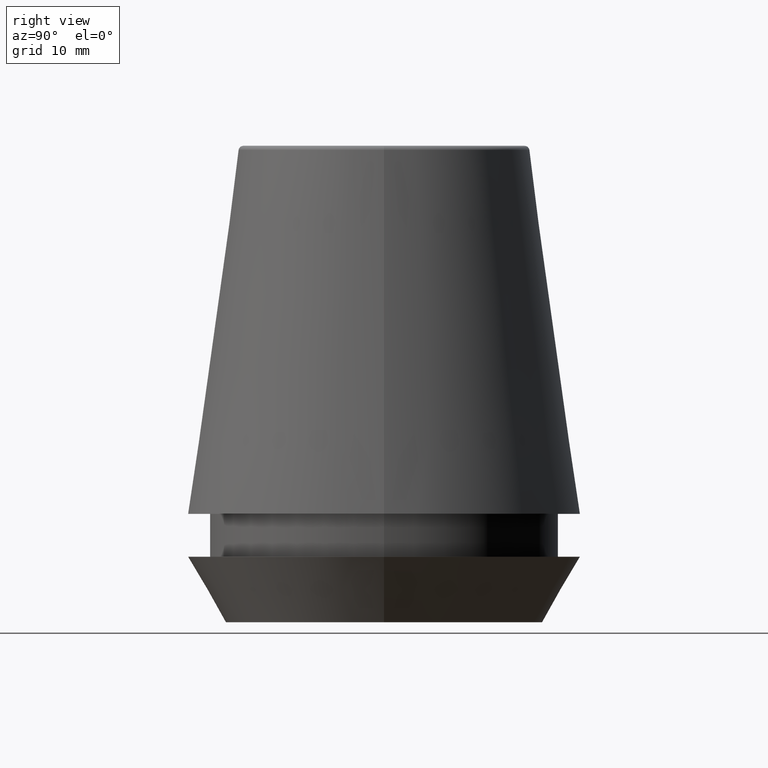
[diagram: clean part render]
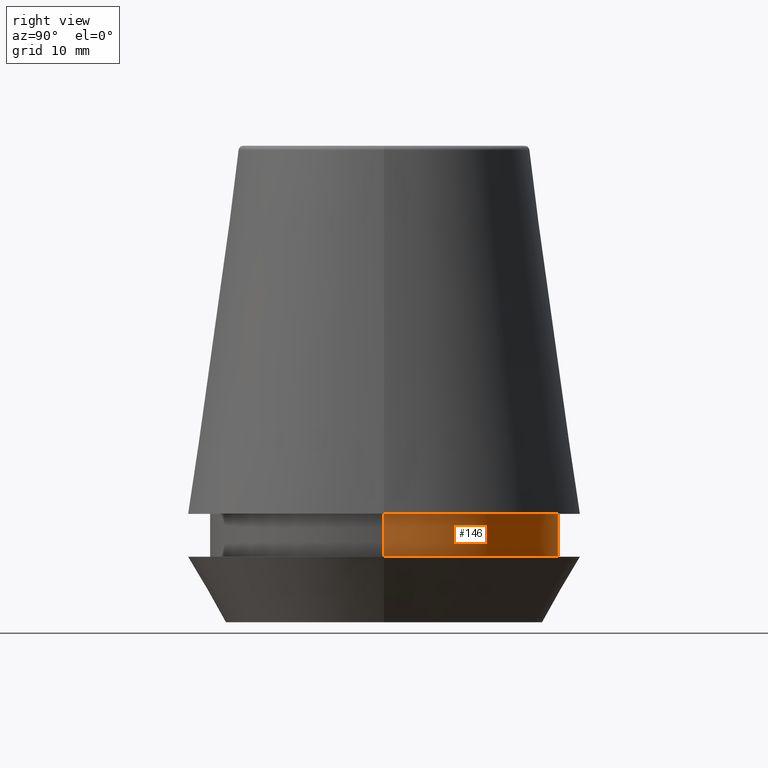
[diagram: same view with one face highlighted and labeled with its STEP entity id]
A machine part, right view. The second image highlights one B-rep face of the part: STEP entity #146.
In plain terms, the highlighted cylindrical surface (partial cylindrical patch) has radius 14.6 mm, axis along (-0, -0, 1).
Its self-contained STEP definition (entity closure, byte-faithful):
#1 = LINE ( 'NONE', #365, #180 ) ;
#3 = EDGE_CURVE ( 'NONE', #273, #267, #1, .T. ) ;
#27 = DIRECTION ( 'NONE',  ( -0.0000000000000000000, -0.0000000000000000000, 1.000000000000000000 ) ) ;
#35 = AXIS2_PLACEMENT_3D ( 'NONE', #286, #27, #92 ) ;
#38 = ORIENTED_EDGE ( 'NONE', *, *, #236, .F. ) ;
#43 = CARTESIAN_POINT ( 'NONE',  ( 14.60000000000000000, 0.0000000000000000000, 101.8074564848000400 ) ) ;
#62 = EDGE_CURVE ( 'NONE', #143, #265, #151, .T. ) ;
#63 = VECTOR ( 'NONE', #292, 1000.000000000000000 ) ;
#67 = CARTESIAN_POINT ( 'NONE',  ( -14.60000000000000000, 1.787984326755135800E-015, 9.099999999999997900 ) ) ;
#70 = AXIS2_PLACEMENT_3D ( 'NONE', #102, #239, #229 ) ;
#77 = FACE_OUTER_BOUND ( 'NONE', #247, .T. ) ;
#88 = CARTESIAN_POINT ( 'NONE',  ( 0.0000000000000000000, 0.0000000000000000000, 101.8074564848000400 ) ) ;
#89 = AXIS2_PLACEMENT_3D ( 'NONE', #88, #347, #191 ) ;
#92 = DIRECTION ( 'NONE',  ( 1.000000000000000000, 0.0000000000000000000, 0.0000000000000000000 ) ) ;
#102 = CARTESIAN_POINT ( 'NONE',  ( 0.0000000000000000000, 0.0000000000000000000, 9.099999999999997900 ) ) ;
#143 = VERTEX_POINT ( 'NONE', #381 ) ;
#146 = ADVANCED_FACE ( 'NONE', ( #77 ), #384, .T. ) ;
#151 = LINE ( 'NONE', #43, #63 ) ;
#180 = VECTOR ( 'NONE', #372, 1000.000000000000000 ) ;
#189 = ORIENTED_EDGE ( 'NONE', *, *, #62, .F. ) ;
#191 = DIRECTION ( 'NONE',  ( 1.000000000000000000, 0.0000000000000000000, 0.0000000000000000000 ) ) ;
#202 = CARTESIAN_POINT ( 'NONE',  ( 14.60000000000000000, 0.0000000000000000000, 9.099999999999997900 ) ) ;
#219 = EDGE_CURVE ( 'NONE', #143, #273, #367, .T. ) ;
#229 = DIRECTION ( 'NONE',  ( 1.000000000000000000, 0.0000000000000000000, 0.0000000000000000000 ) ) ;
#236 = EDGE_CURVE ( 'NONE', #265, #267, #301, .T. ) ;
#239 = DIRECTION ( 'NONE',  ( -0.0000000000000000000, -0.0000000000000000000, 1.000000000000000000 ) ) ;
#247 = EDGE_LOOP ( 'NONE', ( #336, #314, #38, #189 ) ) ;
#265 = VERTEX_POINT ( 'NONE', #202 ) ;
#267 = VERTEX_POINT ( 'NONE', #67 ) ;
#273 = VERTEX_POINT ( 'NONE', #323 ) ;
#286 = CARTESIAN_POINT ( 'NONE',  ( 0.0000000000000000000, 0.0000000000000000000, 5.500000000000005300 ) ) ;
#292 = DIRECTION ( 'NONE',  ( -0.0000000000000000000, -0.0000000000000000000, 1.000000000000000000 ) ) ;
#301 = CIRCLE ( 'NONE', #70, 14.60000000000000000 ) ;
#314 = ORIENTED_EDGE ( 'NONE', *, *, #3, .T. ) ;
#323 = CARTESIAN_POINT ( 'NONE',  ( -14.60000000000000000, 1.787984326755135800E-015, 5.500000000000005300 ) ) ;
#336 = ORIENTED_EDGE ( 'NONE', *, *, #219, .T. ) ;
#347 = DIRECTION ( 'NONE',  ( -0.0000000000000000000, -0.0000000000000000000, 1.000000000000000000 ) ) ;
#365 = CARTESIAN_POINT ( 'NONE',  ( -14.60000000000000000, 1.787984326755135800E-015, 101.8074564848000400 ) ) ;
#367 = CIRCLE ( 'NONE', #35, 14.60000000000000000 ) ;
#372 = DIRECTION ( 'NONE',  ( -0.0000000000000000000, -0.0000000000000000000, 1.000000000000000000 ) ) ;
#381 = CARTESIAN_POINT ( 'NONE',  ( 14.60000000000000000, 0.0000000000000000000, 5.500000000000005300 ) ) ;
#384 = CYLINDRICAL_SURFACE ( 'NONE', #89, 14.60000000000000000 ) ;